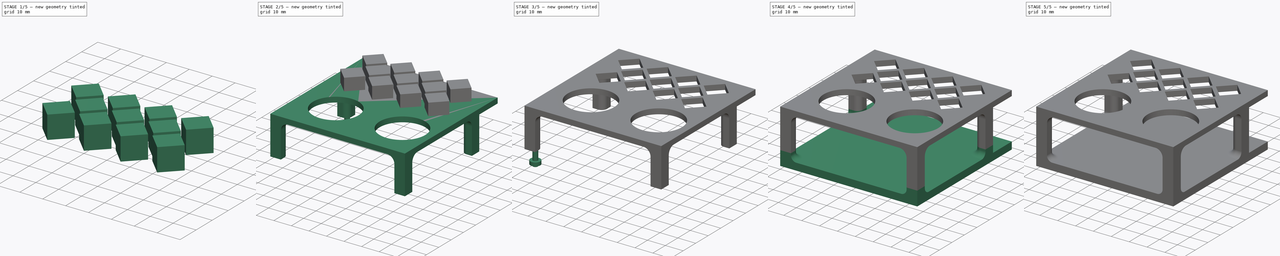
[diagram: build sequence overview — one tinted view per stage of 5, left to right]
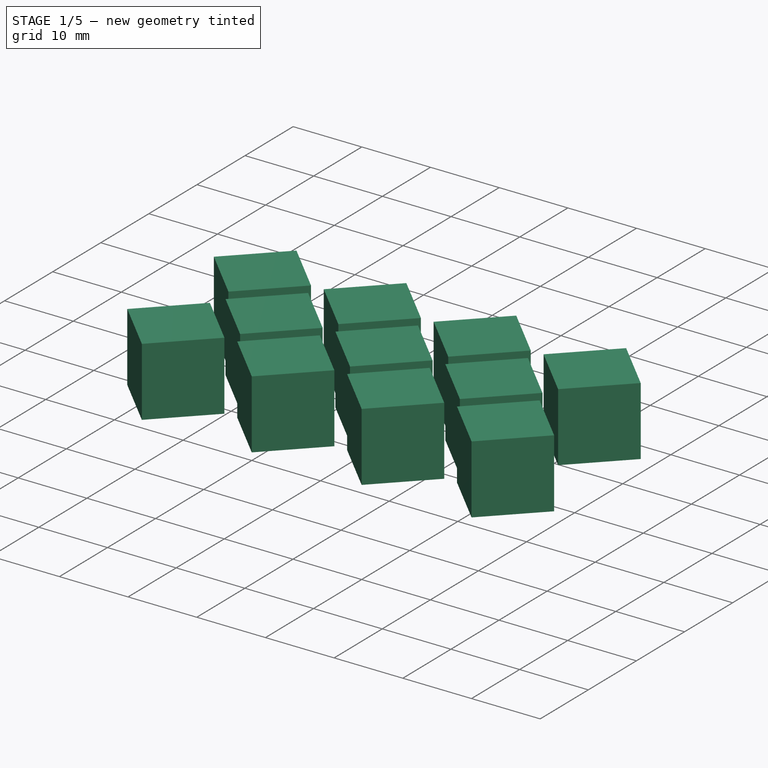
[diagram: stage 1 of 5 — iso view after this stage's code; geometry added in this stage tinted green]
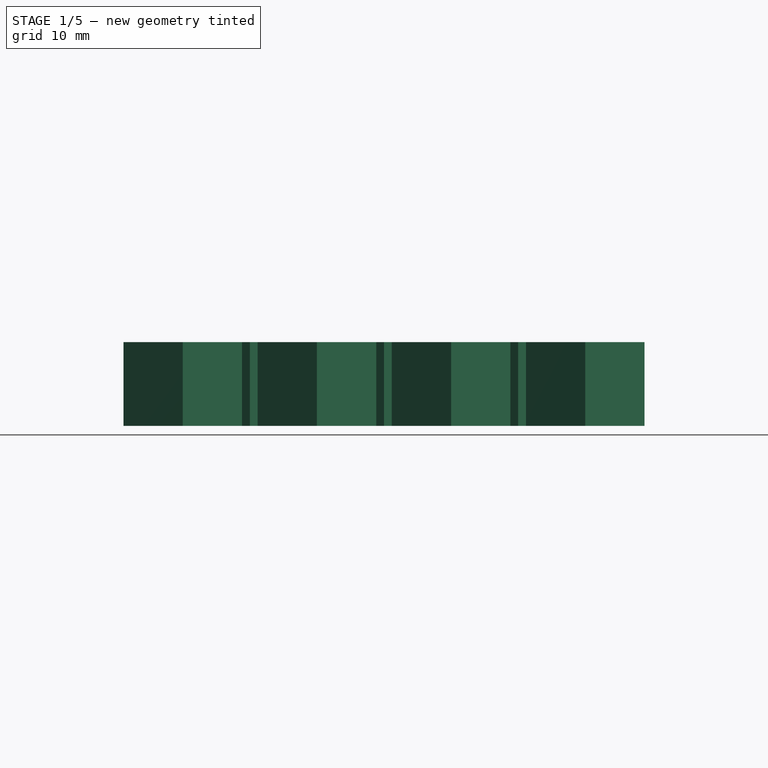
[diagram: stage 1 of 5 — front view after this stage's code; geometry added in this stage tinted green]
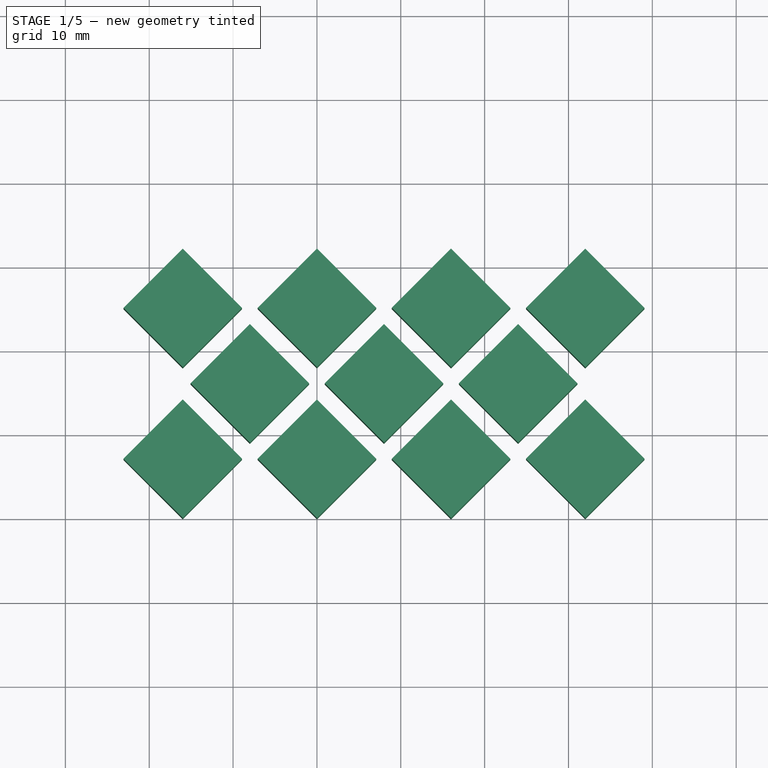
[diagram: stage 1 of 5 — top view after this stage's code; geometry added in this stage tinted green]
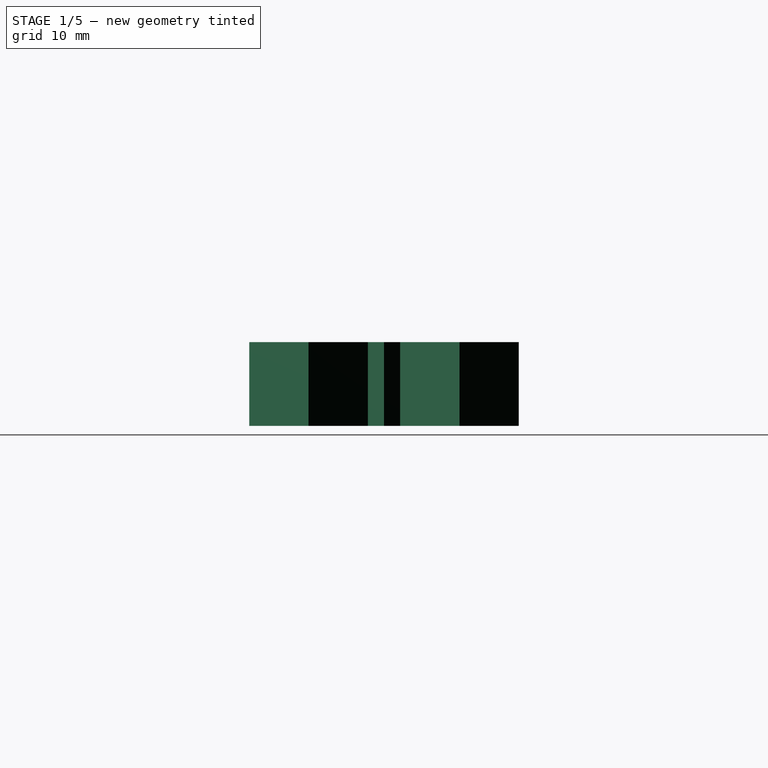
[diagram: stage 1 of 5 — right view after this stage's code; geometry added in this stage tinted green]
FCSTD DOCUMENT  (FreeCAD 0.19R24291 (Git))
Label: full-housing
License: All rights reserved
LicenseURL: http://en.wikipedia.org/wiki/All_rights_reserved
objects: Part::Box×19, Part::Cylinder×12, Part::Fillet×10, Part::Cut×9, Part::MultiFuse×7, Sketcher::SketchObject×2, Part::Extrusion×2
note: 61 computed .brp shape members not serialized (recipe doc carries the construction recipe); baked Part::Feature solids carry a one-line shape summary decoded from their .brp

FEATURE [Part::Box] Box008  label="Cube"
  AttacherType = Attacher::AttachEngine3D
  Height = 10
  Length = 10
  Placement = pos=(14,40,0) rot=(0,0,1;0.785398rad)
  Width = 10
FEATURE [Part::Box] Box009  label="Cube001"
  AttacherType = Attacher::AttachEngine3D
  Height = 10
  Length = 10
  Placement = pos=(30,40,0) rot=(0,0,1;0.785398rad)
  Width = 10
FEATURE [Part::Box] Box010  label="Cube002"
  AttacherType = Attacher::AttachEngine3D
  Height = 10
  Length = 10
  Placement = pos=(62,40,0) rot=(0,0,1;0.785398rad)
  Width = 10
FEATURE [Part::Box] Box011  label="Cube003"
  AttacherType = Attacher::AttachEngine3D
  Height = 10
  Length = 10
  Placement = pos=(46,40,0) rot=(0,0,1;0.785398rad)
  Width = 10
FEATURE [Part::Box] Box012  label="Cube004"
  AttacherType = Attacher::AttachEngine3D
  Height = 10
  Length = 10
  Placement = pos=(22,49,0) rot=(0,0,1;0.785398rad)
  Width = 10
FEATURE [Part::Box] Box013  label="Cube005"
  AttacherType = Attacher::AttachEngine3D
  Height = 10
  Length = 10
  Placement = pos=(38,49,0) rot=(0,0,1;0.785398rad)
  Width = 10
FEATURE [Part::Box] Box014  label="Cube006"
  AttacherType = Attacher::AttachEngine3D
  Height = 10
  Length = 10
  Placement = pos=(54,49,0) rot=(0,0,1;0.785398rad)
  Width = 10
FEATURE [Part::Box] Box015  label="Cube007"
  AttacherType = Attacher::AttachEngine3D
  Height = 10
  Length = 10
  Placement = pos=(14,58,0) rot=(0,0,1;0.785398rad)
  Width = 10
FEATURE [Part::Box] Box016  label="Cube008"
  AttacherType = Attacher::AttachEngine3D
  Height = 10
  Length = 10
  Placement = pos=(30,58,0) rot=(0,0,1;0.785398rad)
  Width = 10
FEATURE [Part::Box] Box017  label="Cube009"
  AttacherType = Attacher::AttachEngine3D
  Height = 10
  Length = 10
  Placement = pos=(62,58,0) rot=(0,0,1;0.785398rad)
  Width = 10
FEATURE [Part::Box] Box018  label="Cube010"
  AttacherType = Attacher::AttachEngine3D
  Height = 10
  Length = 10
  Placement = pos=(46,58,0) rot=(0,0,1;0.785398rad)
  Width = 10
FEATURE [Part::MultiFuse] Fusion006  label="decorator-cutout"
  Shapes = -> [Box008,Box009,Box010,Box011,Box012,Box013,Box014,Box015,Box016,Box017,Box018]
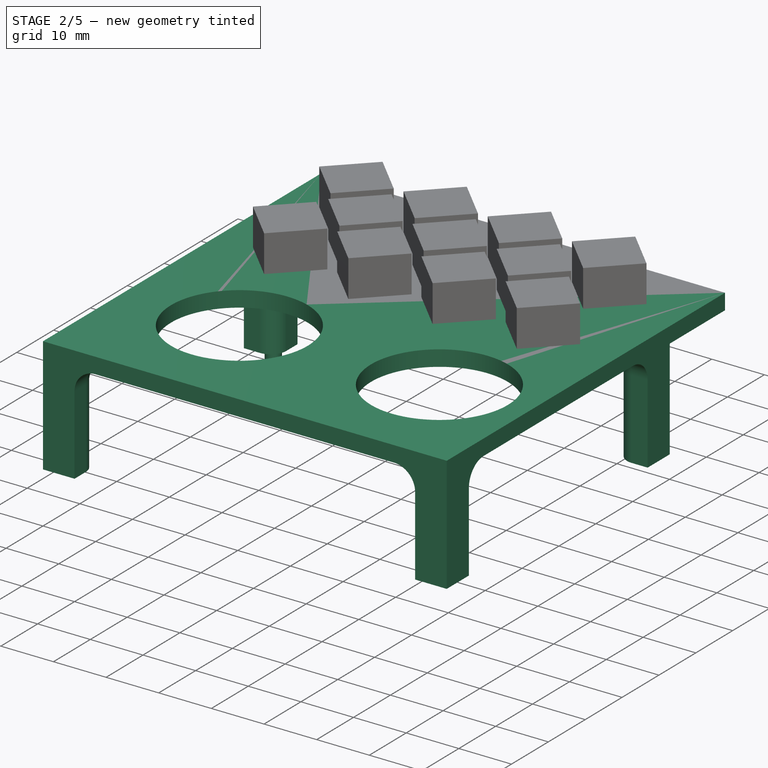
[diagram: stage 2 of 5 — iso view after this stage's code; geometry added in this stage tinted green]
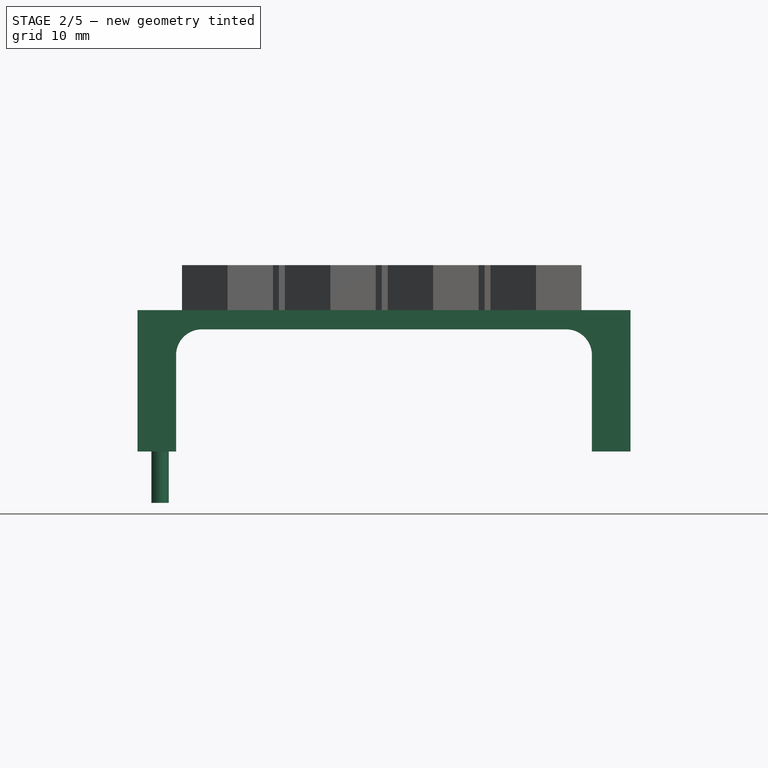
[diagram: stage 2 of 5 — front view after this stage's code; geometry added in this stage tinted green]
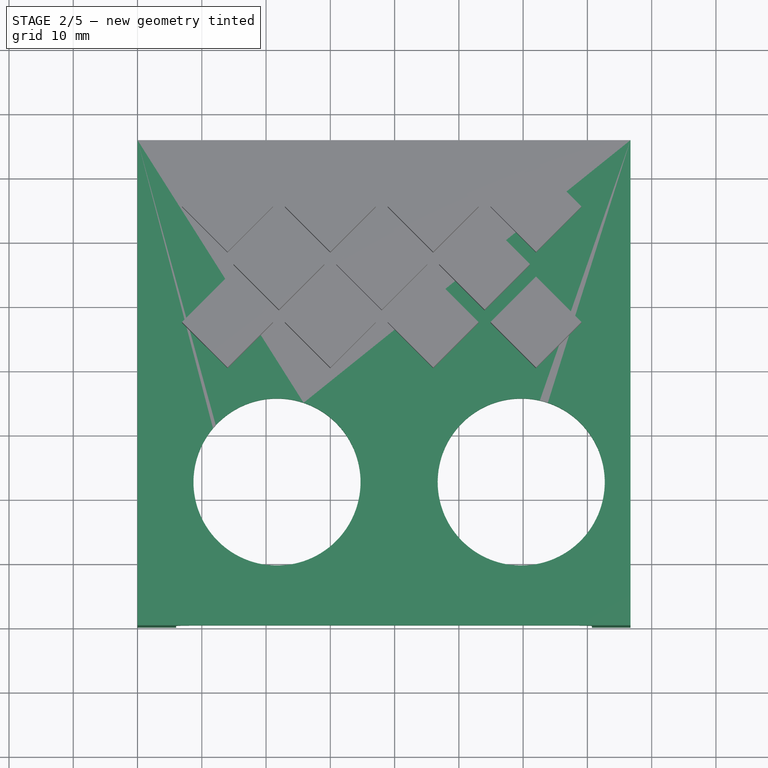
[diagram: stage 2 of 5 — top view after this stage's code; geometry added in this stage tinted green]
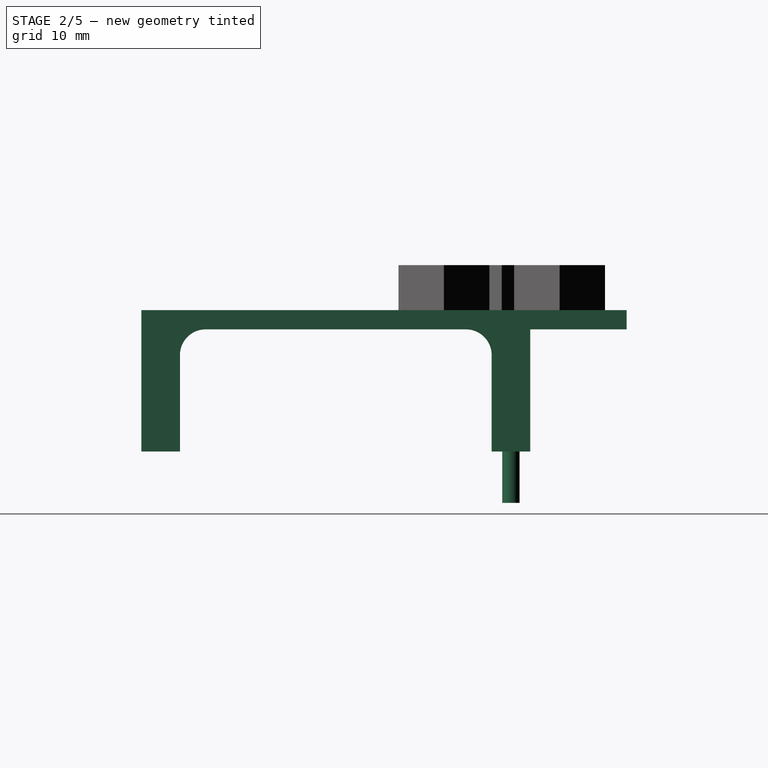
[diagram: stage 2 of 5 — right view after this stage's code; geometry added in this stage tinted green]
FEATURE [Sketcher::SketchObject] Sketch
  FullyConstrained = true
  sketch-geometry (6):
    g0: LineSegment StartX=0 StartY=0 StartZ=0 EndX=76.7 EndY=0 EndZ=0
    g1: LineSegment StartX=76.7 StartY=0 StartZ=0 EndX=76.7 EndY=75.5 EndZ=0
    g2: LineSegment StartX=76.7 StartY=75.5 StartZ=0 EndX=0 EndY=75.5 EndZ=0
    g3: LineSegment StartX=0 StartY=75.5 StartZ=0 EndX=0 EndY=0 EndZ=0
    g4: Circle CenterX=59.7 CenterY=22.3 CenterZ=0 NormalX=0 NormalY=0 NormalZ=1 AngleXU=0 Radius=13
    g5: Circle CenterX=21.7 CenterY=22.3 CenterZ=0 NormalX=0 NormalY=0 NormalZ=1 AngleXU=0 Radius=13
  constraints (17):
    c: Coincident(g0,g1)
    c: Coincident(g1,g2)
    c: Coincident(g2,g3)
    c: Coincident(g3,g0)
    c: Horizontal(g0)
    c: Horizontal(g2)
    c: Vertical(g1)
    c: Vertical(g3)
    c: Coincident(g0,g-1)
    c: DistanceX(g2,g2) = 76.7
    c: DistanceY(g1,g1) = 75.5
    c: Equal(g5,g4)
    c: DistanceY(g4,g5) = 0
    c: DistanceY(g0,g4) = 22.3
    c: DistanceX(g4,g0) = 17
    c: DistanceX(g5,g4) = 38
    c: Radius(g5) = 13
FEATURE [Part::Extrusion] Extrude  label="top-plate"
  Base = -> Sketch
  Dir = (0,0,1)
  DirMode = 2
  FaceMakerClass = Part::FaceMakerBullseye
  LengthFwd = 3
  LengthRev = 0
  Solid = true
  Symmetric = false
FEATURE [Part::Box] Box  label="raw-post"
  AttacherType = Attacher::AttachEngine3D
  Height = 19
  Length = 6
  Placement = pos=(0,0,-19) rot=(0,0,1;0rad)
  Width = 6
FEATURE [Part::Box] Box001  label="raw-post001"
  AttacherType = Attacher::AttachEngine3D
  Height = 19
  Length = 6
  Placement = pos=(70.7,0,-19) rot=(0,0,1;0rad)
  Width = 6
FEATURE [Part::Box] Box002  label="raw-post002"
  AttacherType = Attacher::AttachEngine3D
  Height = 19
  Length = 6
  Placement = pos=(70.7,54.5,-19) rot=(0,0,1;0rad)
  Width = 6
FEATURE [Part::Box] Box003  label="raw-post003"
  AttacherType = Attacher::AttachEngine3D
  Height = 19
  Length = 6
  Placement = pos=(0,54.5,-19) rot=(0,0,1;0rad)
  Width = 6
FEATURE [Part::Fillet] Fillet  label="roundedpost1"
  Base = -> Box003
  Edges = 1 edges r=3: [Edge5]
FEATURE [Part::Fillet] Fillet001  label="roundedpost2"
  Base = -> Box002
  Edges = 1 edges r=3: [Edge1]
FEATURE [Part::Fillet] Fillet002  label="roundedpost3"
  Base = -> Box
  Edges = 1 edges r=3: [Edge7]
FEATURE [Part::Fillet] Fillet003  label="roundedpost4"
  Base = -> Box001
  Edges = 1 edges r=3: [Edge3]
FEATURE [Part::MultiFuse] Fusion  label="top-plate-with-rounded-posts"
  Shapes = -> [Extrude,Fillet,Fillet001,Fillet002,Fillet003]
FEATURE [Part::Cylinder] Cylinder003  label="threaded-cutout003"
  Angle = 360
  AttacherType = Attacher::AttachEngine3D
  Height = 22
  Placement = pos=(3.5,57.5,-27) rot=(0,0,1;0rad)
  Radius = 1.35
FEATURE [Part::Fillet] Fillet004  label="reinforced-top-plate-with-pegs"
  Base = -> Fusion
  Edges = 12 edges r=4: [Edge22,Edge23,Edge24,Edge25,Edge26,Edge27,Edge31,Edge32,Edge33,Edge34,Edge35,Edge36]
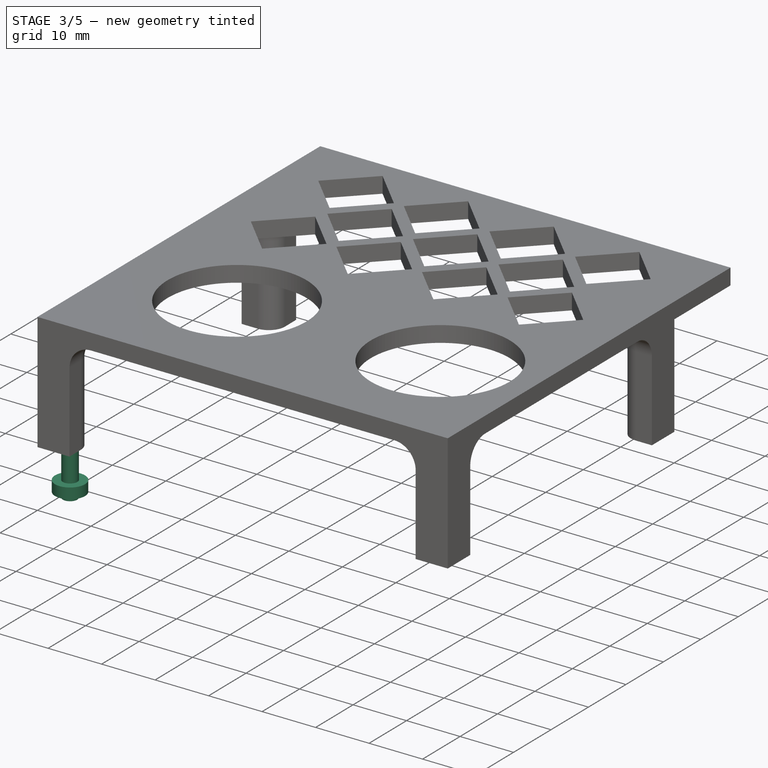
[diagram: stage 3 of 5 — iso view after this stage's code; geometry added in this stage tinted green]
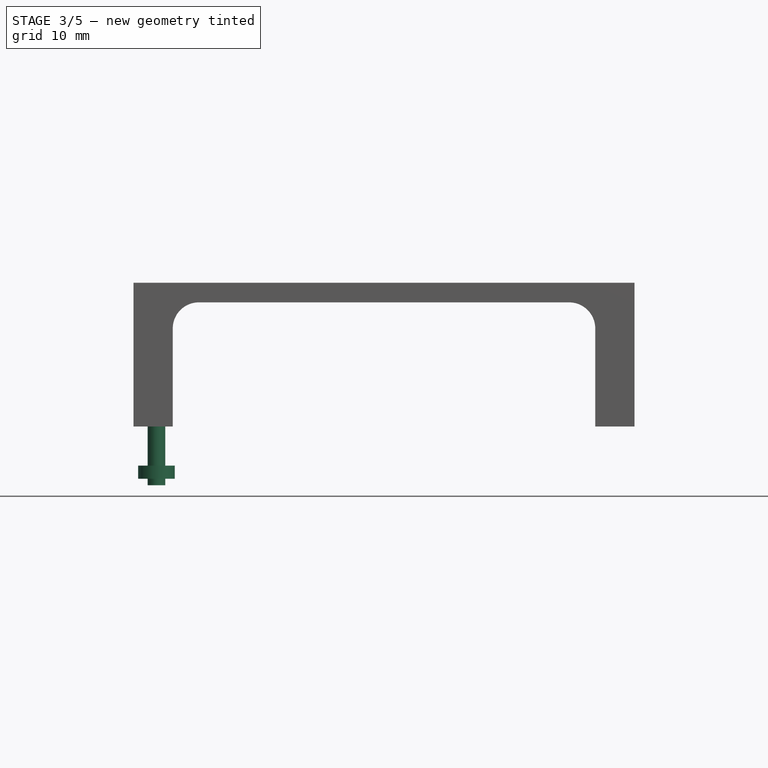
[diagram: stage 3 of 5 — front view after this stage's code; geometry added in this stage tinted green]
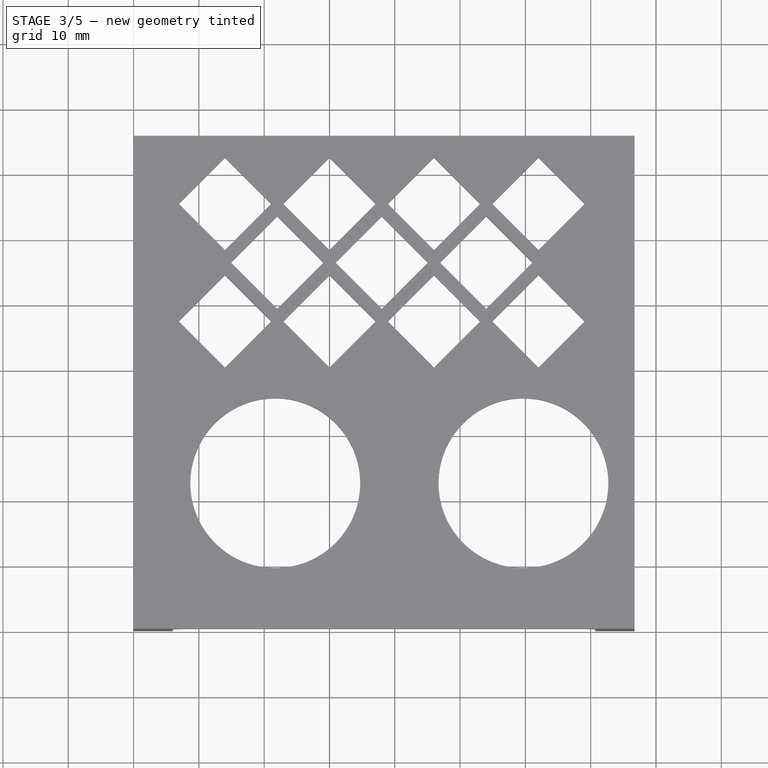
[diagram: stage 3 of 5 — top view after this stage's code; geometry added in this stage tinted green]
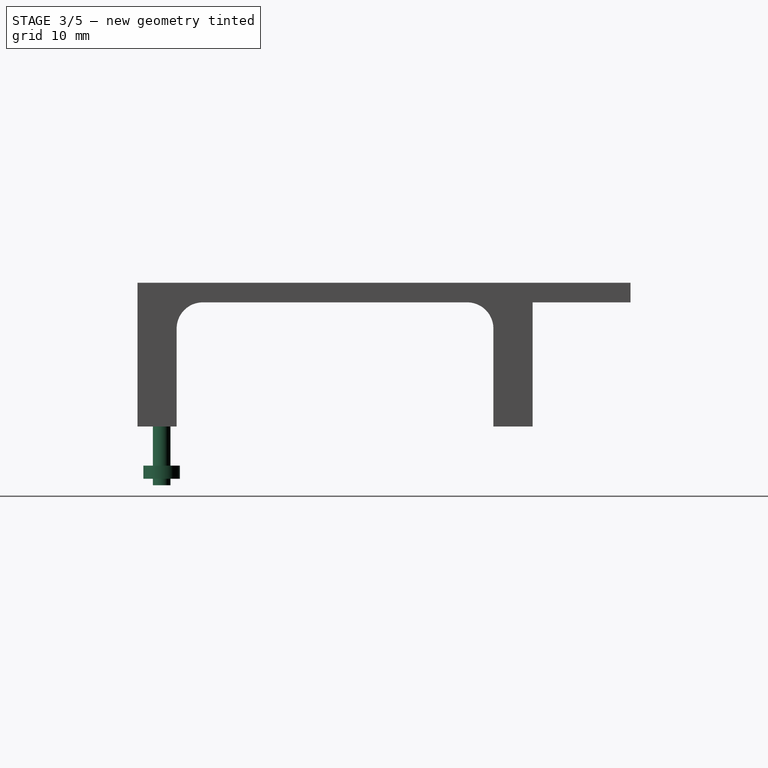
[diagram: stage 3 of 5 — right view after this stage's code; geometry added in this stage tinted green]
FEATURE [Part::Cylinder] Cylinder  label="threaded-cutout"
  Angle = 360
  AttacherType = Attacher::AttachEngine3D
  Height = 22
  Placement = pos=(3.5,3.7,-27) rot=(0,0,1;0rad)
  Radius = 1.35
FEATURE [Part::Cylinder] Cylinder001  label="threaded-cutout001"
  Angle = 360
  AttacherType = Attacher::AttachEngine3D
  Height = 22
  Placement = pos=(73.2,3.7,-27) rot=(0,0,1;0rad)
  Radius = 1.35
FEATURE [Part::Cylinder] Cylinder002  label="threaded-cutout002"
  Angle = 360
  AttacherType = Attacher::AttachEngine3D
  Height = 22
  Placement = pos=(73.2,57.5,-27) rot=(0,0,1;0rad)
  Radius = 1.35
FEATURE [Part::Cut] Cut
  Base = -> Fillet004
  Tool = -> Cylinder003
FEATURE [Part::Cut] Cut001
  Base = -> Cut
  Tool = -> Cylinder002
FEATURE [Part::Cut] Cut002
  Base = -> Cut001
  Tool = -> Cylinder001
FEATURE [Part::Cut] Cut003  label="top-plate-complete"
  Base = -> Cut002
  Tool = -> Cylinder
FEATURE [Part::Cylinder] Cylinder005  label="unthreaded-cutout2"
  Angle = 360
  AttacherType = Attacher::AttachEngine3D
  Height = 22
  Placement = pos=(3.5,3.7,-28) rot=(0,0,1;0rad)
  Radius = 1.35
FEATURE [Part::Cylinder] Cylinder008  label="unthreaded-screw-head"
  Angle = 360
  AttacherType = Attacher::AttachEngine3D
  Height = 2
  Placement = pos=(3.5,3.7,-27) rot=(0,0,1;0rad)
  Radius = 2.8
FEATURE [Part::MultiFuse] Fusion002  label="screw-slip-through1"
  Shapes = -> [Cylinder005,Cylinder008]
FEATURE [Part::Cut] Cut008  label="top-plate-complete-decorated"
  Base = -> Cut003
  Tool = -> Fusion006
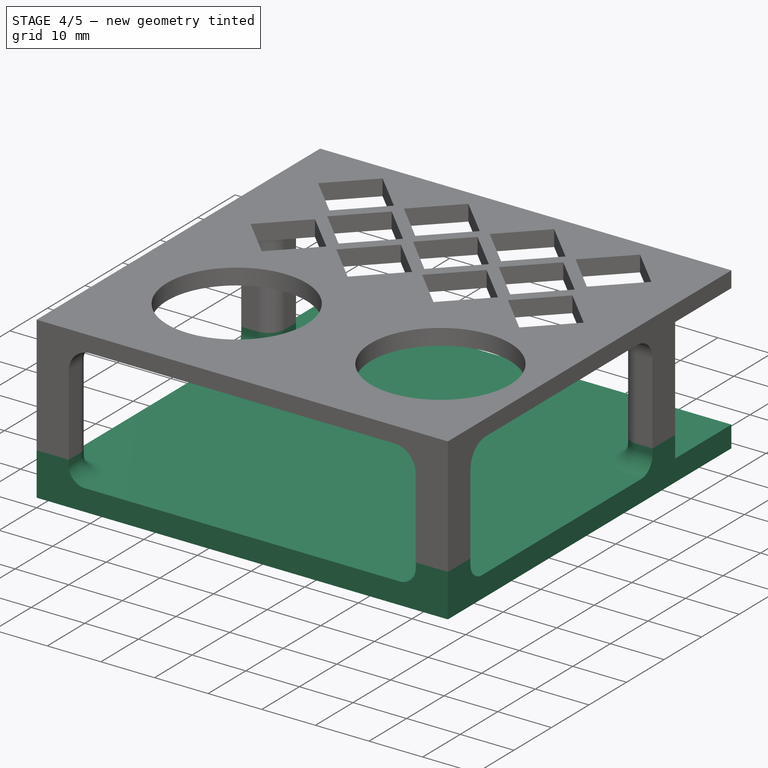
[diagram: stage 4 of 5 — iso view after this stage's code; geometry added in this stage tinted green]
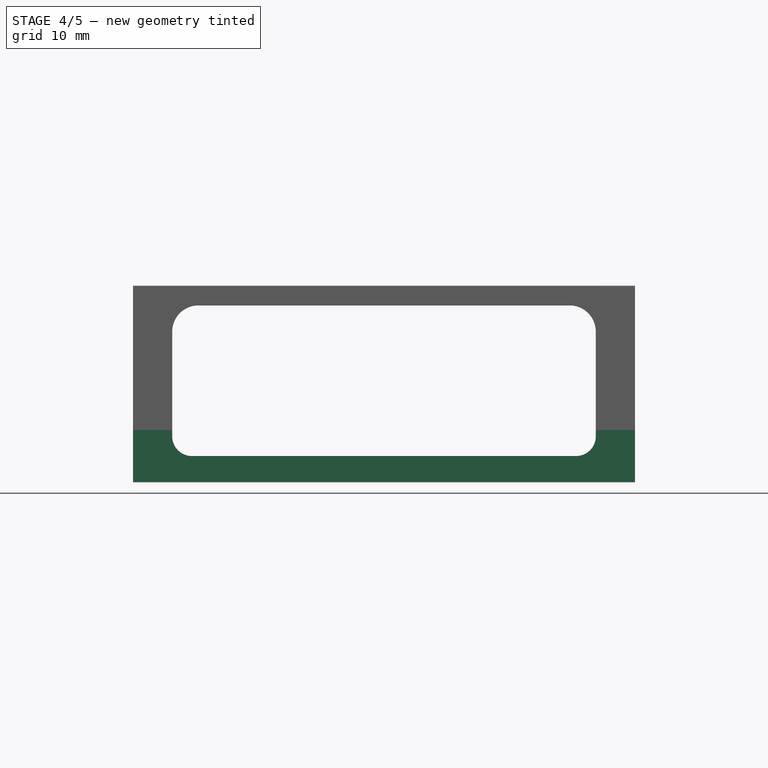
[diagram: stage 4 of 5 — front view after this stage's code; geometry added in this stage tinted green]
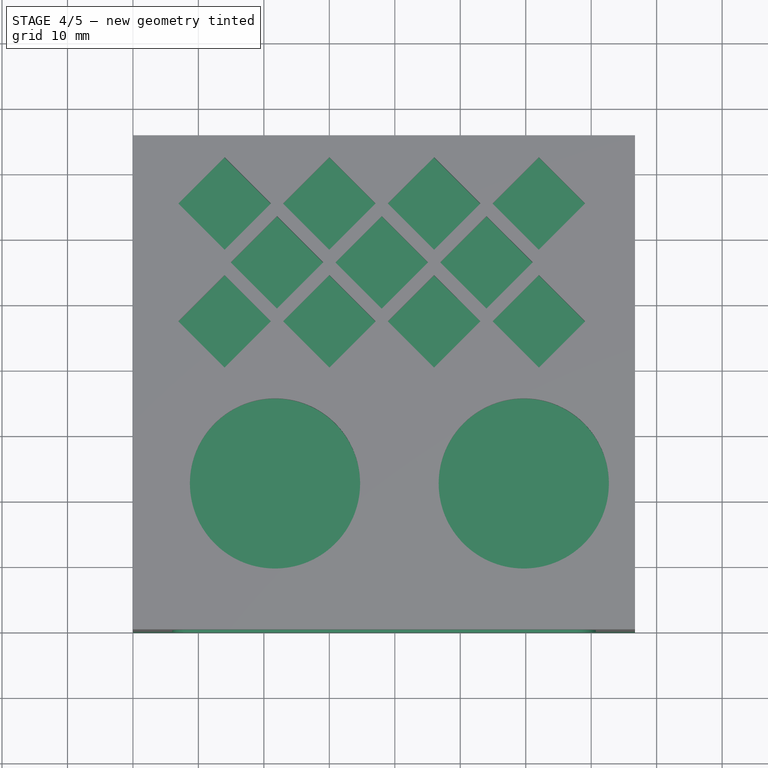
[diagram: stage 4 of 5 — top view after this stage's code; geometry added in this stage tinted green]
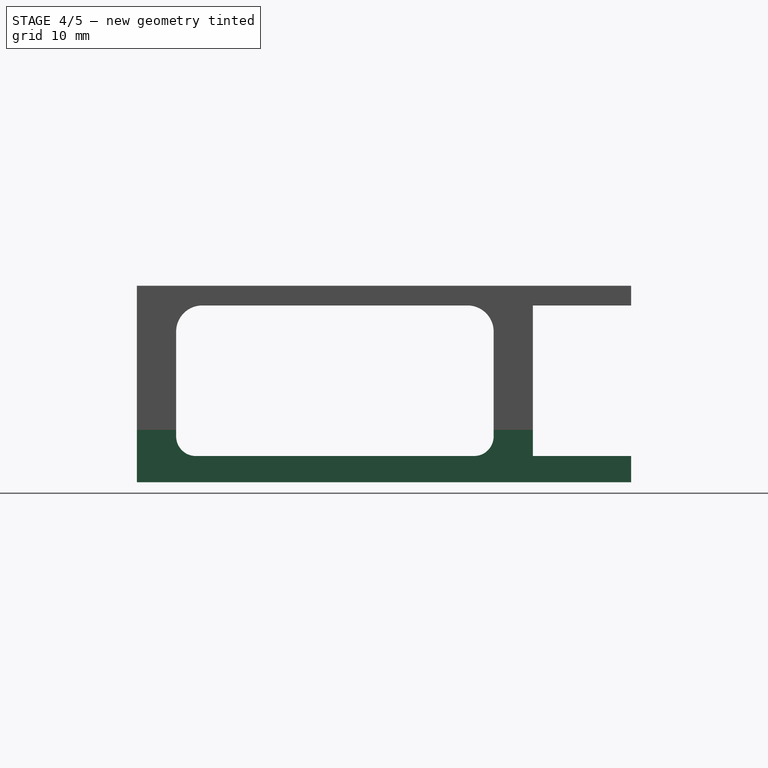
[diagram: stage 4 of 5 — right view after this stage's code; geometry added in this stage tinted green]
FEATURE [Sketcher::SketchObject] Sketch004
  FullyConstrained = true
  sketch-geometry (8):
    g0: LineSegment StartX=0 StartY=0 StartZ=0 EndX=76.7 EndY=0 EndZ=0
    g1: LineSegment StartX=76.7 StartY=0 StartZ=0 EndX=76.7 EndY=75.5 EndZ=0
    g2: LineSegment StartX=76.7 StartY=75.5 StartZ=0 EndX=0 EndY=75.5 EndZ=0
    g3: LineSegment StartX=0 StartY=75.5 StartZ=0 EndX=0 EndY=0 EndZ=0
    g4: Circle CenterX=3.5 CenterY=3.7 CenterZ=0 NormalX=0 NormalY=0 NormalZ=1 AngleXU=0 Radius=1.75
    g5: Circle CenterX=73.2 CenterY=3.7 CenterZ=0 NormalX=0 NormalY=0 NormalZ=1 AngleXU=0 Radius=1.75
    g6: Circle CenterX=3.5 CenterY=57.5 CenterZ=0 NormalX=0 NormalY=0 NormalZ=1 AngleXU=0 Radius=1.75
    g7: Circle CenterX=73.2 CenterY=57.5 CenterZ=0 NormalX=0 NormalY=0 NormalZ=1 AngleXU=0 Radius=1.75
  constraints (23):
    c: Coincident(g0,g1)
    c: Coincident(g1,g2)
    c: Coincident(g2,g3)
    c: Coincident(g3,g0)
    c: Horizontal(g0)
    c: Horizontal(g2)
    c: Vertical(g1)
    c: Vertical(g3)
    c: Coincident(g0,g-1)
    c: DistanceX(g2,g2) = 76.7
    c: DistanceY(g1,g1) = 75.5
    c: DistanceY(g5,g4) = 0
    c: DistanceY(g0,g4) = 3.7
    c: DistanceX(g0,g4) = 3.5
    c: DistanceX(g5,g0) = 3.5
    c: Equal(g4,g5)
    c: Equal(g6,g7)
    c: DistanceY(g7,g6) = 0
    c: DistanceX(g7,g5) = 0
    c: DistanceX(g4,g6) = 0
    c: DistanceY(g6,g2) = 18
    c: Equal(g6,g4)
    c: Radius(g6) = 1.75
FEATURE [Part::Extrusion] Extrude004  label="bottom-plate"
  Base = -> Sketch004
  Dir = (0,0,1)
  DirMode = 2
  FaceMakerClass = Part::FaceMakerBullseye
  LengthFwd = 4
  LengthRev = 0
  Placement = pos=(0,0,-27) rot=(0,0,1;0rad)
  Solid = true
  Symmetric = false
FEATURE [Part::Box] Box004  label="raw-post004"
  AttacherType = Attacher::AttachEngine3D
  Height = 4
  Length = 6
  Placement = pos=(70.7,54.5,-23) rot=(0,0,1;0rad)
  Width = 6
FEATURE [Part::Box] Box005  label="raw-post005"
  AttacherType = Attacher::AttachEngine3D
  Height = 4
  Length = 6
  Placement = pos=(0,0,-23) rot=(0,0,1;0rad)
  Width = 6
FEATURE [Part::Fillet] Fillet005  label="roundedpost005"
  Base = -> Box005
  Edges = 1 edges r=3: [Edge7]
FEATURE [Part::Fillet] Fillet007  label="roundedpost007"
  Base = -> Box004
  Edges = 1 edges r=3: [Edge1]
FEATURE [Part::Box] Box006  label="raw-post006"
  AttacherType = Attacher::AttachEngine3D
  Height = 4
  Length = 6
  Placement = pos=(70.7,0,-23) rot=(0,0,1;0rad)
  Width = 6
FEATURE [Part::Box] Box007  label="raw-post007"
  AttacherType = Attacher::AttachEngine3D
  Height = 4
  Length = 6
  Placement = pos=(0,54.5,-23) rot=(0,0,1;0rad)
  Width = 6
FEATURE [Part::Fillet] Fillet006  label="roundedpost006"
  Base = -> Box007
  Edges = 1 edges r=3: [Edge5]
FEATURE [Part::Fillet] Fillet008  label="roundedpost008"
  Base = -> Box006
  Edges = 1 edges r=3: [Edge3]
FEATURE [Part::MultiFuse] Fusion001  label="bottom-plate-with-rounded-posts"
  Shapes = -> [Fillet005,Fillet006,Fillet007,Fillet008,Extrude004]
FEATURE [Part::Fillet] Fillet009  label="reinforced-bottom-plate-with-pegs"
  Base = -> Fusion001
  Edges = 12 edges r=3: [Edge27,Edge28,Edge29,Edge30,Edge31,Edge32,Edge36,Edge37,Edge38,Edge39,Edge40,Edge41]
FEATURE [Part::Cut] Cut004
  Base = -> Fillet009
  Tool = -> Fusion002
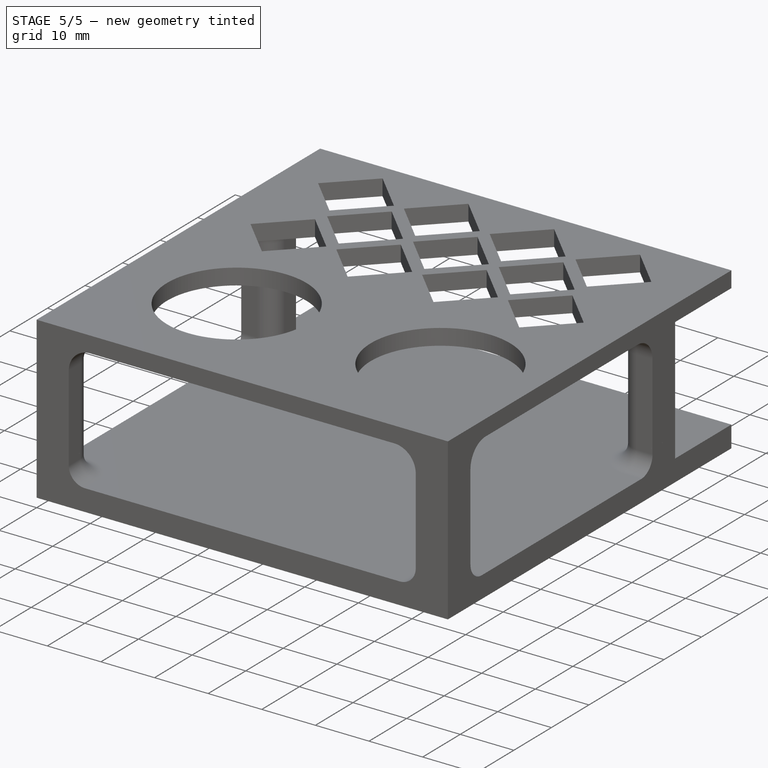
[diagram: stage 5 of 5 — iso view after this stage's code; geometry added in this stage tinted green]
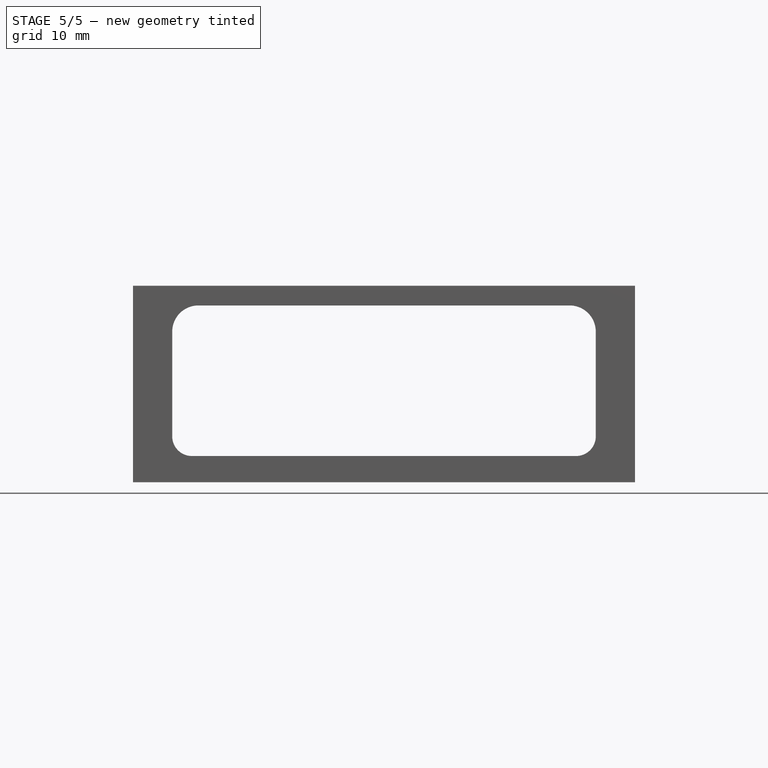
[diagram: stage 5 of 5 — front view after this stage's code; geometry added in this stage tinted green]
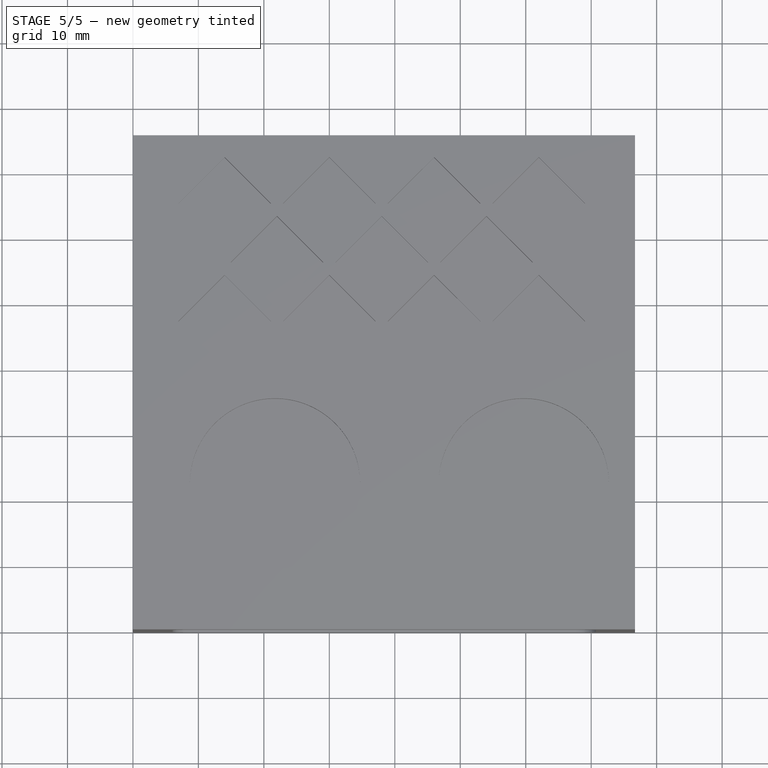
[diagram: stage 5 of 5 — top view after this stage's code; geometry added in this stage tinted green]
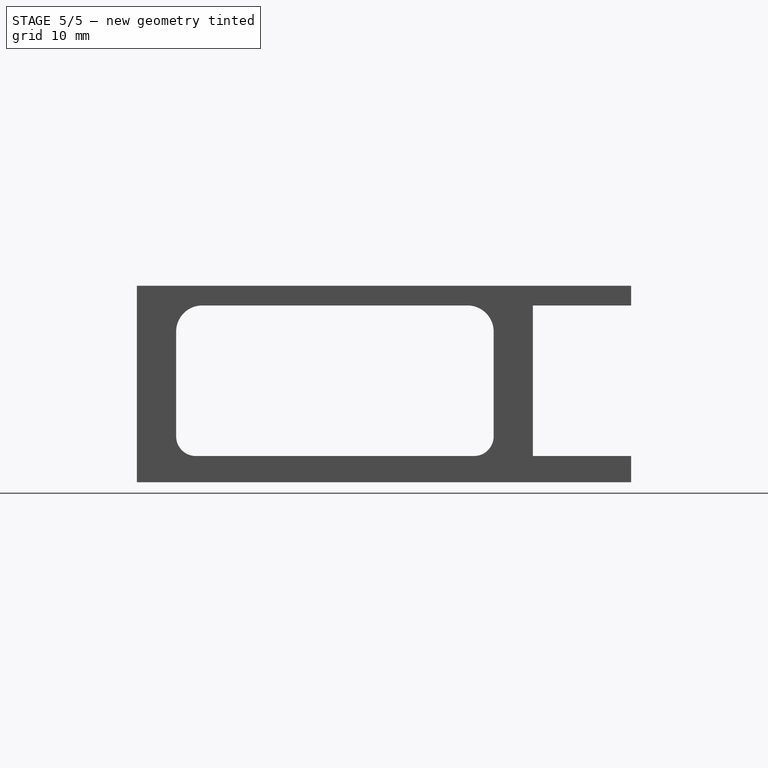
[diagram: stage 5 of 5 — right view after this stage's code; geometry added in this stage tinted green]
FEATURE [Part::Cylinder] Cylinder004  label="unthreaded-cutout1"
  Angle = 360
  AttacherType = Attacher::AttachEngine3D
  Height = 22
  Placement = pos=(3.5,57.5,-28) rot=(0,0,1;0rad)
  Radius = 1.5
FEATURE [Part::Cylinder] Cylinder006  label="unthreaded-cutout3"
  Angle = 360
  AttacherType = Attacher::AttachEngine3D
  Height = 22
  Placement = pos=(73.2,3.7,-28) rot=(0,0,1;0rad)
  Radius = 1.35
FEATURE [Part::Cylinder] Cylinder007  label="unthreaded-cutout4"
  Angle = 360
  AttacherType = Attacher::AttachEngine3D
  Height = 22
  Placement = pos=(73.2,57.5,-28) rot=(0,0,1;0rad)
  Radius = 1.35
FEATURE [Part::Cylinder] Cylinder009  label="unthreaded-screw-head001"
  Angle = 360
  AttacherType = Attacher::AttachEngine3D
  Height = 2
  Placement = pos=(73.2,3.7,-27) rot=(0,0,1;0rad)
  Radius = 2.8
FEATURE [Part::Cylinder] Cylinder010  label="unthreaded-screw-head002"
  Angle = 360
  AttacherType = Attacher::AttachEngine3D
  Height = 2
  Placement = pos=(73.2,57.5,-27) rot=(0,0,1;0rad)
  Radius = 2.8
FEATURE [Part::Cylinder] Cylinder011  label="unthreaded-screw-head003"
  Angle = 360
  AttacherType = Attacher::AttachEngine3D
  Height = 2
  Placement = pos=(3.5,57.5,-27) rot=(0,0,1;0rad)
  Radius = 2.95
FEATURE [Part::MultiFuse] Fusion003  label="screw-slip-through2"
  Shapes = -> [Cylinder009,Cylinder006]
FEATURE [Part::MultiFuse] Fusion004  label="screw-slip-through3"
  Shapes = -> [Cylinder010,Cylinder007]
FEATURE [Part::MultiFuse] Fusion005  label="screw-slip-through4"
  Shapes = -> [Cylinder004,Cylinder011]
FEATURE [Part::Cut] Cut005
  Base = -> Cut004
  Tool = -> Fusion003
FEATURE [Part::Cut] Cut006
  Base = -> Cut005
  Tool = -> Fusion004
FEATURE [Part::Cut] Cut007  label="bottom-plate-complete"
  Base = -> Cut006
  Tool = -> Fusion005
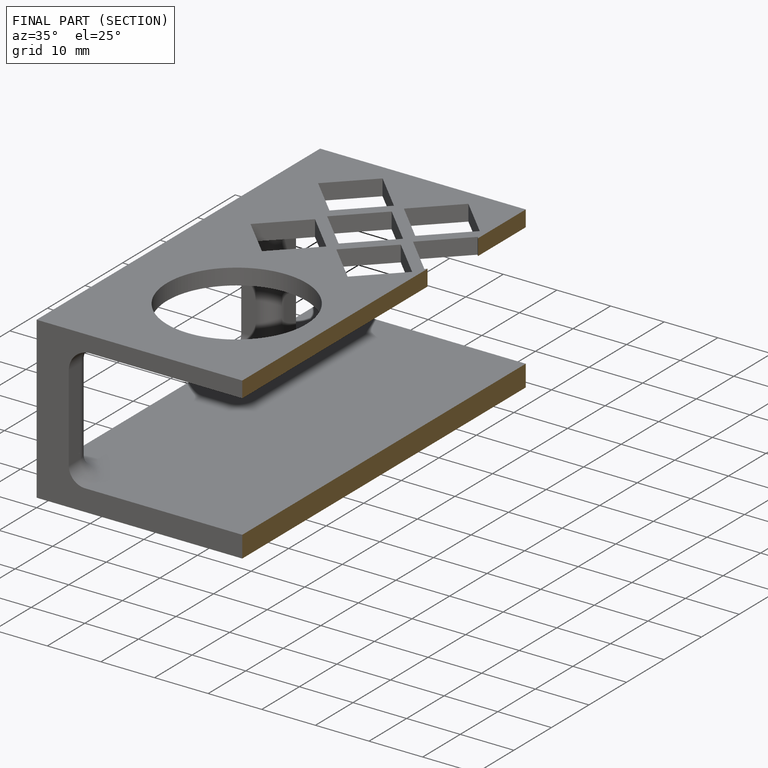
[diagram: finished part — half-section view (interior)]
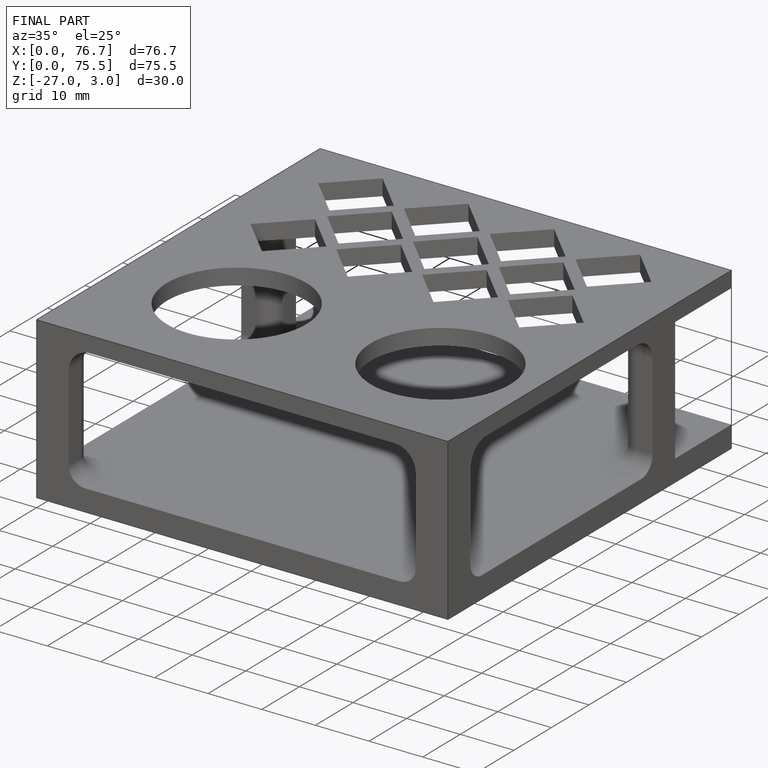
[diagram: finished part — iso view with bounding-box wireframe]
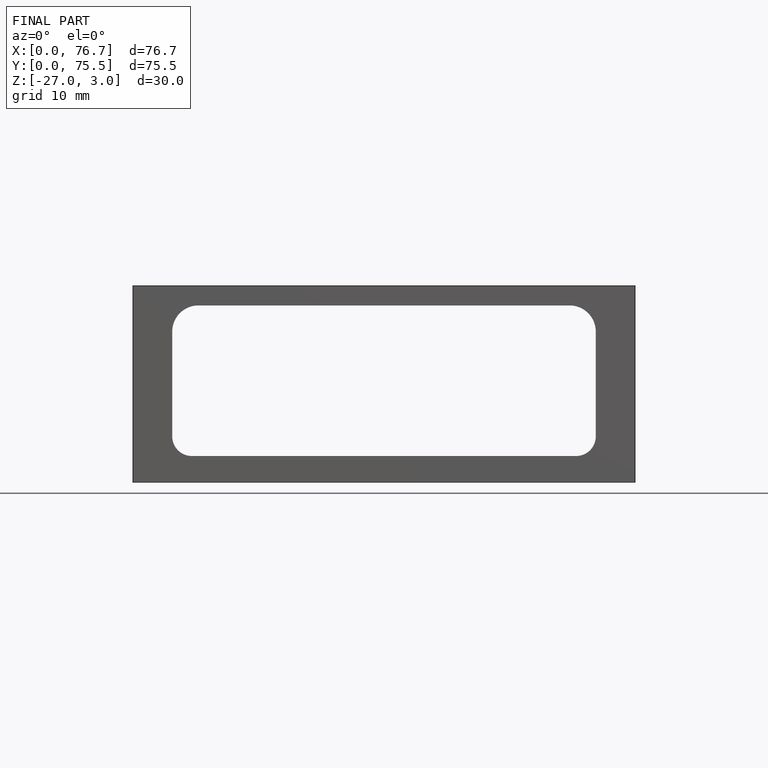
[diagram: finished part — front view with bounding-box wireframe]
